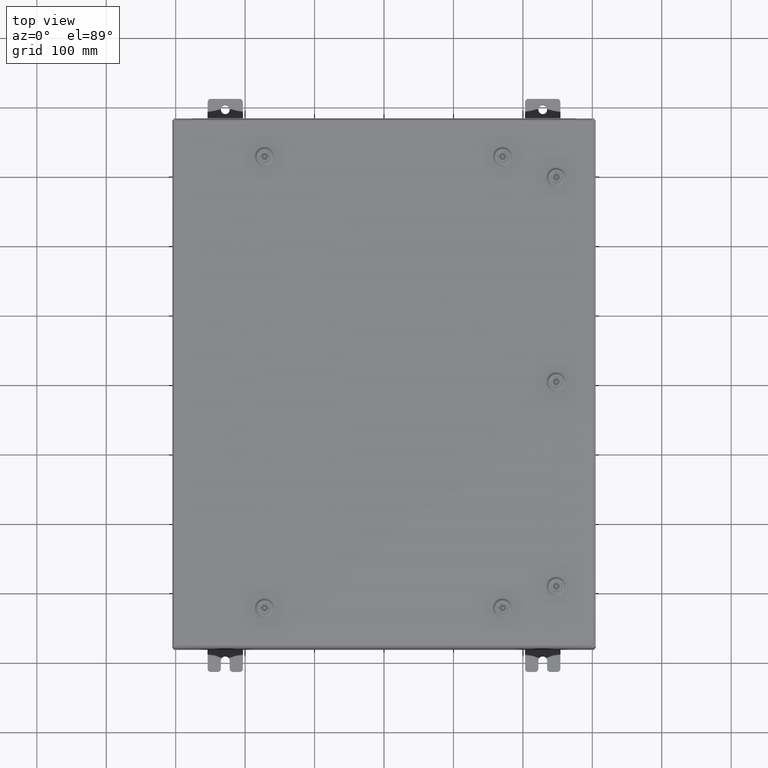
[diagram: clean part render]
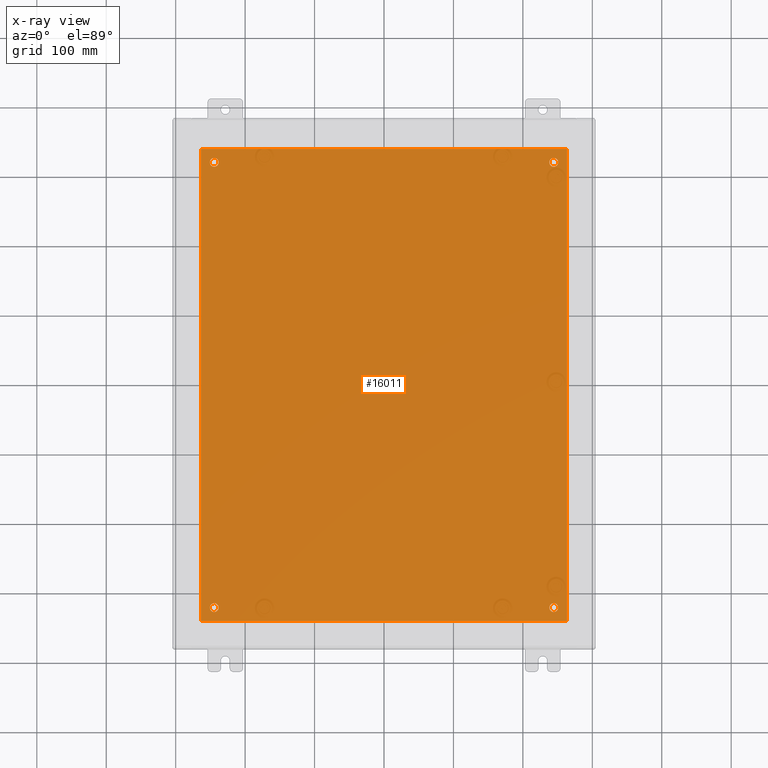
[diagram: x-ray — body ghosted, one internal face saturated and labeled with its STEP entity id]
A machine part, top view, then the same camera in x-ray: the body is ghosted and one INTERNAL B-rep face — a face not visible from any outside direction — is saturated and labeled: STEP entity #16011.
In plain terms, the highlighted planar face has unit normal (0, 0, -1).
Its self-contained STEP definition (entity closure, byte-faithful):
#199 = CARTESIAN_POINT ( 'NONE',  ( -10.50000000000000200, -13.38299999999999900, -0.1040000000000009100 ) ) ;
#2161 = DIRECTION ( 'NONE',  ( -0.0000000000000000000, -0.0000000000000000000, 1.000000000000000000 ) ) ;
#2361 = EDGE_CURVE ( 'NONE', #48114, #25905, #17493, .T. ) ;
#2404 = CARTESIAN_POINT ( 'NONE',  ( -9.625000000000007100, -12.62500000000000000, -0.1039999999999999800 ) ) ;
#2588 = CARTESIAN_POINT ( 'NONE',  ( -10.38300000000000100, 13.38299999999999700, -0.1040000000000020100 ) ) ;
#3344 = DIRECTION ( 'NONE',  ( -1.000000000000000000, 0.0000000000000000000, 0.0000000000000000000 ) ) ;
#3551 = AXIS2_PLACEMENT_3D ( 'NONE', #50777, #21111, #55765 ) ;
#3708 = CARTESIAN_POINT ( 'NONE',  ( -9.625000000000007100, 12.62500000000000000, -0.1039999999999999800 ) ) ;
#3826 = AXIS2_PLACEMENT_3D ( 'NONE', #42147, #12512, #47132 ) ;
#4316 = DIRECTION ( 'NONE',  ( 0.0000000000000000000, 1.000000000000000000, 0.0000000000000000000 ) ) ;
#4575 = CARTESIAN_POINT ( 'NONE',  ( -9.625000000000007100, 12.62500000000000000, -0.1039999999999999800 ) ) ;
#5148 = DIRECTION ( 'NONE',  ( -0.0000000000000000000, -0.0000000000000000000, 1.000000000000000000 ) ) ;
#5312 = EDGE_CURVE ( 'NONE', #37061, #41119, #17310, .T. ) ;
#5502 = EDGE_CURVE ( 'NONE', #25905, #9731, #52173, .T. ) ;
#5751 = VECTOR ( 'NONE', #12810, 39.37007874015748100 ) ;
#6284 = LINE ( 'NONE', #199, #7818 ) ;
#6911 = ORIENTED_EDGE ( 'NONE', *, *, #9959, .T. ) ;
#7102 = EDGE_CURVE ( 'NONE', #41144, #16939, #49773, .T. ) ;
#7323 = CARTESIAN_POINT ( 'NONE',  ( 9.375000000000007100, -12.62500000000000000, -0.1039999999999999800 ) ) ;
#7818 = VECTOR ( 'NONE', #49128, 39.37007874015748100 ) ;
#7822 = VERTEX_POINT ( 'NONE', #44803 ) ;
#7957 = ORIENTED_EDGE ( 'NONE', *, *, #8574, .T. ) ;
#8574 = EDGE_CURVE ( 'NONE', #16939, #41144, #9391, .T. ) ;
#8679 = DIRECTION ( 'NONE',  ( -1.000000000000000000, 0.0000000000000000000, 0.0000000000000000000 ) ) ;
#9237 = ORIENTED_EDGE ( 'NONE', *, *, #51558, .T. ) ;
#9391 = CIRCLE ( 'NONE', #45354, 0.2500000000000008900 ) ;
#9731 = VERTEX_POINT ( 'NONE', #37491 ) ;
#9744 = VERTEX_POINT ( 'NONE', #36014 ) ;
#9959 = EDGE_CURVE ( 'NONE', #9744, #27115, #47337, .T. ) ;
#12512 = DIRECTION ( 'NONE',  ( -0.0000000000000000000, -0.0000000000000000000, 1.000000000000000000 ) ) ;
#12625 = LINE ( 'NONE', #33702, #37365 ) ;
#12810 = DIRECTION ( 'NONE',  ( 0.0000000000000000000, -1.000000000000000000, 0.0000000000000000000 ) ) ;
#13255 = EDGE_CURVE ( 'NONE', #9731, #62165, #6284, .T. ) ;
#16011 = ADVANCED_FACE ( 'NONE', ( #63465, #61908, #48697, #22363, #37047 ), #54766, .T. ) ;
#16374 = DIRECTION ( 'NONE',  ( -1.000000000000000000, 0.0000000000000000000, 0.0000000000000000000 ) ) ;
#16939 = VERTEX_POINT ( 'NONE', #54242 ) ;
#17052 = CIRCLE ( 'NONE', #3551, 0.2499999999999998100 ) ;
#17310 = CIRCLE ( 'NONE', #24461, 0.2499999999999998100 ) ;
#17493 = LINE ( 'NONE', #22682, #55487 ) ;
#18703 = CARTESIAN_POINT ( 'NONE',  ( -9.375000000000007100, 12.62500000000000000, -0.1039999999999999800 ) ) ;
#19551 = ORIENTED_EDGE ( 'NONE', *, *, #5502, .F. ) ;
#19765 = EDGE_CURVE ( 'NONE', #7822, #46259, #44608, .T. ) ;
#20867 = CARTESIAN_POINT ( 'NONE',  ( 9.875000000000007100, 12.62500000000000000, -0.1039999999999999800 ) ) ;
#21111 = DIRECTION ( 'NONE',  ( -0.0000000000000000000, -0.0000000000000000000, 1.000000000000000000 ) ) ;
#22363 = FACE_BOUND ( 'NONE', #42013, .T. ) ;
#22682 = CARTESIAN_POINT ( 'NONE',  ( 10.50000000000000400, 13.38299999999999900, -0.1040000000000009100 ) ) ;
#23670 = EDGE_LOOP ( 'NONE', ( #37355, #19551, #51117, #44543 ) ) ;
#23811 = AXIS2_PLACEMENT_3D ( 'NONE', #4575, #5148, #16374 ) ;
#24461 = AXIS2_PLACEMENT_3D ( 'NONE', #31515, #49241, #3344 ) ;
#24959 = EDGE_CURVE ( 'NONE', #62165, #48114, #12625, .T. ) ;
#25563 = DIRECTION ( 'NONE',  ( -1.000000000000000000, 0.0000000000000000000, 0.0000000000000000000 ) ) ;
#25874 = CARTESIAN_POINT ( 'NONE',  ( 10.38300000000000100, -13.38299999999999700, -0.1040000000000009100 ) ) ;
#25905 = VERTEX_POINT ( 'NONE', #63566 ) ;
#26664 = CIRCLE ( 'NONE', #3826, 0.2499999999999998100 ) ;
#27115 = VERTEX_POINT ( 'NONE', #18703 ) ;
#30058 = DIRECTION ( 'NONE',  ( -1.000000000000000000, 0.0000000000000000000, -0.0000000000000000000 ) ) ;
#31515 = CARTESIAN_POINT ( 'NONE',  ( 9.625000000000007100, -12.62500000000000000, -0.1039999999999999800 ) ) ;
#31793 = CARTESIAN_POINT ( 'NONE',  ( 9.625000000000007100, 12.62500000000000000, -0.1039999999999999800 ) ) ;
#33045 = ORIENTED_EDGE ( 'NONE', *, *, #5312, .T. ) ;
#33702 = CARTESIAN_POINT ( 'NONE',  ( 10.38300000000000100, -13.38299999999999700, -0.1040000000000009100 ) ) ;
#34919 = AXIS2_PLACEMENT_3D ( 'NONE', #31793, #2161, #36742 ) ;
#36014 = CARTESIAN_POINT ( 'NONE',  ( -9.875000000000007100, 12.62500000000000000, -0.1039999999999999800 ) ) ;
#36742 = DIRECTION ( 'NONE',  ( -1.000000000000000000, 0.0000000000000000000, 0.0000000000000000000 ) ) ;
#36759 = DIRECTION ( 'NONE',  ( -0.0000000000000000000, -0.0000000000000000000, 1.000000000000000000 ) ) ;
#37047 = FACE_OUTER_BOUND ( 'NONE', #23670, .T. ) ;
#37061 = VERTEX_POINT ( 'NONE', #7323 ) ;
#37355 = ORIENTED_EDGE ( 'NONE', *, *, #13255, .F. ) ;
#37365 = VECTOR ( 'NONE', #4316, 39.37007874015748100 ) ;
#37491 = CARTESIAN_POINT ( 'NONE',  ( -10.38300000000000100, -13.38299999999999900, -0.1040000000000009100 ) ) ;
#38283 = DIRECTION ( 'NONE',  ( -0.0000000000000000000, -0.0000000000000000000, 1.000000000000000000 ) ) ;
#39421 = CARTESIAN_POINT ( 'NONE',  ( 10.38300000000000100, 13.38299999999999700, -0.1040000000000009100 ) ) ;
#41119 = VERTEX_POINT ( 'NONE', #48953 ) ;
#41144 = VERTEX_POINT ( 'NONE', #59160 ) ;
#41685 = EDGE_LOOP ( 'NONE', ( #54366, #7957 ) ) ;
#41971 = DIRECTION ( 'NONE',  ( -0.0000000000000000000, -0.0000000000000000000, 1.000000000000000000 ) ) ;
#42013 = EDGE_LOOP ( 'NONE', ( #57237, #6911 ) ) ;
#42147 = CARTESIAN_POINT ( 'NONE',  ( 9.625000000000007100, 12.62500000000000000, -0.1039999999999999800 ) ) ;
#44543 = ORIENTED_EDGE ( 'NONE', *, *, #24959, .F. ) ;
#44608 = CIRCLE ( 'NONE', #34919, 0.2499999999999998100 ) ;
#44803 = CARTESIAN_POINT ( 'NONE',  ( 9.375000000000007100, 12.62500000000000000, -0.1039999999999999800 ) ) ;
#45354 = AXIS2_PLACEMENT_3D ( 'NONE', #2404, #41971, #54539 ) ;
#46259 = VERTEX_POINT ( 'NONE', #20867 ) ;
#46779 = DIRECTION ( 'NONE',  ( -1.000000000000000000, -0.0000000000000000000, -0.0000000000000000000 ) ) ;
#47132 = DIRECTION ( 'NONE',  ( -1.000000000000000000, 0.0000000000000000000, 0.0000000000000000000 ) ) ;
#47337 = CIRCLE ( 'NONE', #23811, 0.2500000000000008900 ) ;
#48114 = VERTEX_POINT ( 'NONE', #39421 ) ;
#48697 = FACE_BOUND ( 'NONE', #51673, .T. ) ;
#48953 = CARTESIAN_POINT ( 'NONE',  ( 9.875000000000007100, -12.62500000000000000, -0.1039999999999999800 ) ) ;
#49128 = DIRECTION ( 'NONE',  ( 1.000000000000000000, -0.0000000000000000000, -0.0000000000000000000 ) ) ;
#49241 = DIRECTION ( 'NONE',  ( -0.0000000000000000000, -0.0000000000000000000, 1.000000000000000000 ) ) ;
#49614 = CIRCLE ( 'NONE', #62471, 0.2500000000000008900 ) ;
#49773 = CIRCLE ( 'NONE', #53609, 0.2500000000000008900 ) ;
#49783 = CARTESIAN_POINT ( 'NONE',  ( 0.0000000000000000000, 0.0000000000000000000, -0.1039999999999999800 ) ) ;
#50777 = CARTESIAN_POINT ( 'NONE',  ( 9.625000000000007100, -12.62500000000000000, -0.1039999999999999800 ) ) ;
#51117 = ORIENTED_EDGE ( 'NONE', *, *, #2361, .F. ) ;
#51190 = EDGE_CURVE ( 'NONE', #27115, #9744, #49614, .T. ) ;
#51558 = EDGE_CURVE ( 'NONE', #41119, #37061, #17052, .T. ) ;
#51673 = EDGE_LOOP ( 'NONE', ( #54170, #53590 ) ) ;
#51802 = AXIS2_PLACEMENT_3D ( 'NONE', #49783, #59775, #30058 ) ;
#52173 = LINE ( 'NONE', #2588, #5751 ) ;
#53590 = ORIENTED_EDGE ( 'NONE', *, *, #19765, .T. ) ;
#53609 = AXIS2_PLACEMENT_3D ( 'NONE', #56082, #36759, #25563 ) ;
#54170 = ORIENTED_EDGE ( 'NONE', *, *, #60781, .T. ) ;
#54242 = CARTESIAN_POINT ( 'NONE',  ( -9.875000000000007100, -12.62500000000000000, -0.1039999999999999800 ) ) ;
#54366 = ORIENTED_EDGE ( 'NONE', *, *, #7102, .T. ) ;
#54539 = DIRECTION ( 'NONE',  ( -1.000000000000000000, 0.0000000000000000000, 0.0000000000000000000 ) ) ;
#54766 = PLANE ( 'NONE',  #51802 ) ;
#55487 = VECTOR ( 'NONE', #46779, 39.37007874015748100 ) ;
#55765 = DIRECTION ( 'NONE',  ( -1.000000000000000000, 0.0000000000000000000, 0.0000000000000000000 ) ) ;
#56082 = CARTESIAN_POINT ( 'NONE',  ( -9.625000000000007100, -12.62500000000000000, -0.1039999999999999800 ) ) ;
#57237 = ORIENTED_EDGE ( 'NONE', *, *, #51190, .T. ) ;
#58699 = EDGE_LOOP ( 'NONE', ( #9237, #33045 ) ) ;
#59160 = CARTESIAN_POINT ( 'NONE',  ( -9.375000000000007100, -12.62500000000000000, -0.1039999999999999800 ) ) ;
#59775 = DIRECTION ( 'NONE',  ( 0.0000000000000000000, 0.0000000000000000000, -1.000000000000000000 ) ) ;
#60781 = EDGE_CURVE ( 'NONE', #46259, #7822, #26664, .T. ) ;
#61908 = FACE_BOUND ( 'NONE', #58699, .T. ) ;
#62165 = VERTEX_POINT ( 'NONE', #25874 ) ;
#62471 = AXIS2_PLACEMENT_3D ( 'NONE', #3708, #38283, #8679 ) ;
#63465 = FACE_BOUND ( 'NONE', #41685, .T. ) ;
#63566 = CARTESIAN_POINT ( 'NONE',  ( -10.38300000000000100, 13.38299999999999700, -0.1040000000000020100 ) ) ;